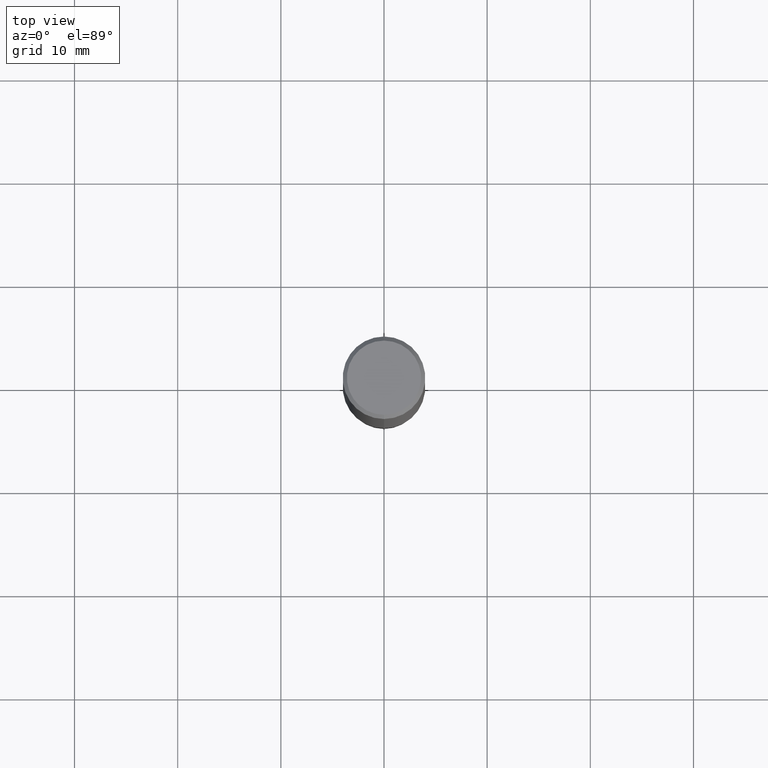
[diagram: clean part render]
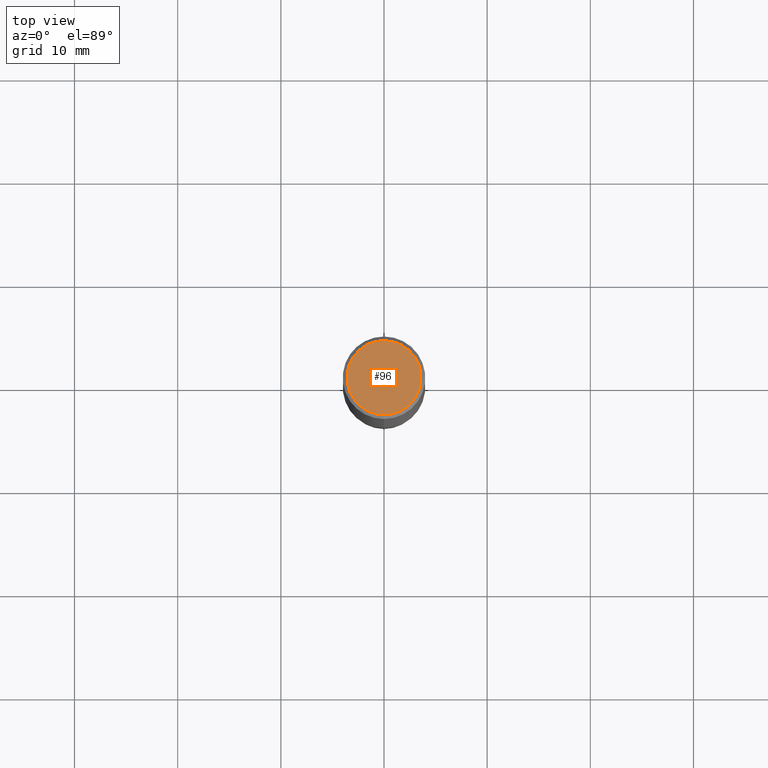
[diagram: same view with one face highlighted and labeled with its STEP entity id]
A machine part, top view. The second image highlights one B-rep face of the part: STEP entity #96.
In plain terms, the highlighted planar face has unit normal (-0, 0, 1).
Its self-contained STEP definition (entity closure, byte-faithful):
#90=VERTEX_POINT('',#213);
#96=ADVANCED_FACE('',(#219),#220,.T.);
#114=EDGE_CURVE('',#140,#90,#240,.T.);
#140=VERTEX_POINT('',#270);
#168=EDGE_CURVE('',#90,#140,#300,.T.);
#213=CARTESIAN_POINT('',(4.40858287376056E-016,-3.6,0.0));
#219=FACE_OUTER_BOUND('',#347,.T.);
#220=PLANE('',#348);
#240=CIRCLE('',#372,3.6);
#270=CARTESIAN_POINT('',(0.0,3.6,0.0));
#300=CIRCLE('',#449,3.6);
#347=EDGE_LOOP('',(#487,#488));
#348=AXIS2_PLACEMENT_3D('',#489,#490,#491);
#372=AXIS2_PLACEMENT_3D('',#517,#518,#519);
#449=AXIS2_PLACEMENT_3D('',#586,#587,#588);
#487=ORIENTED_EDGE('',*,*,#114,.F.);
#488=ORIENTED_EDGE('',*,*,#168,.F.);
#489=CARTESIAN_POINT('',(0.0,1.8,0.0));
#490=DIRECTION('',(-0.0,0.0,1.0));
#491=DIRECTION('',(0.0,-1.0,0.0));
#517=CARTESIAN_POINT('',(0.0,0.0,0.0));
#518=DIRECTION('',(0.0,0.0,-1.0));
#519=DIRECTION('',(0.0,1.0,0.0));
#586=CARTESIAN_POINT('',(0.0,0.0,0.0));
#587=DIRECTION('',(0.0,0.0,-1.0));
#588=DIRECTION('',(0.0,1.0,0.0));